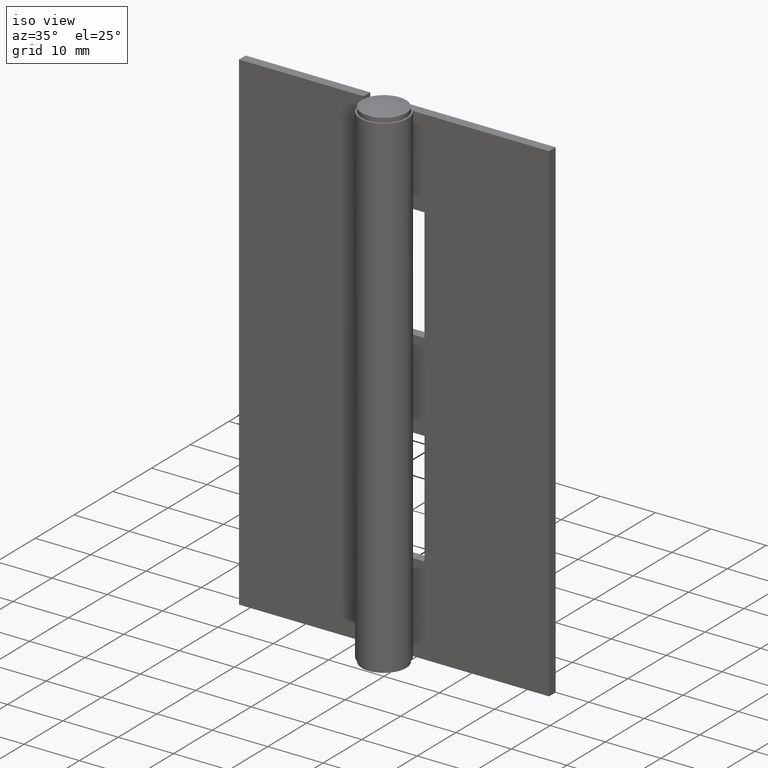
[diagram: clean part render]
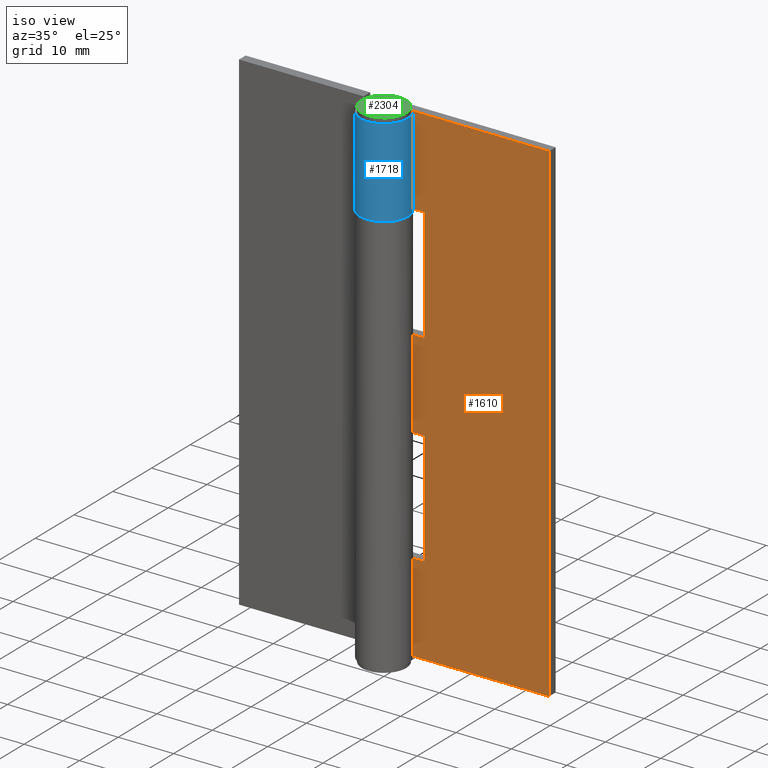
[diagram: same view with three faces highlighted in distinct colors, each labeled with its STEP entity id]
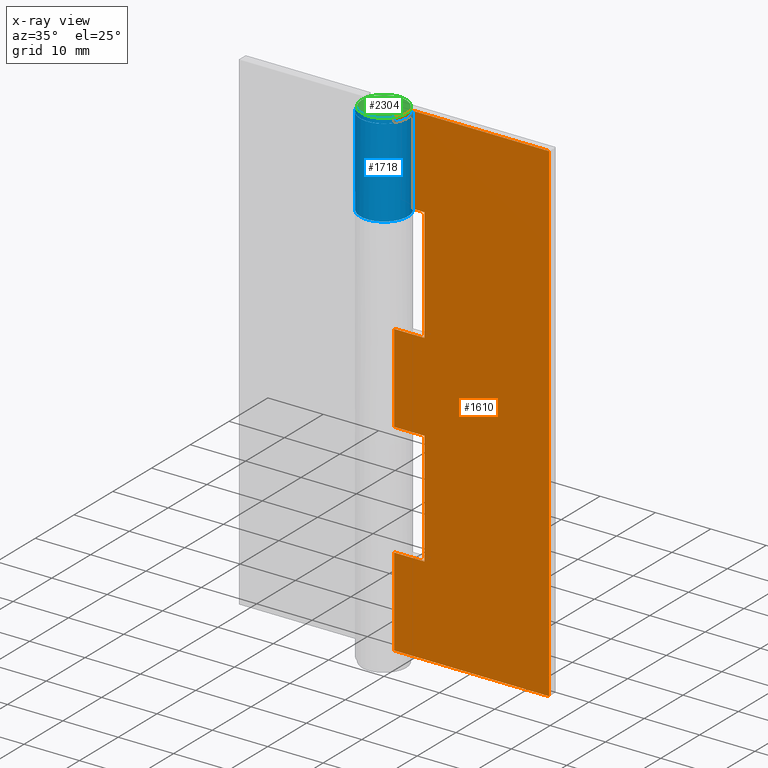
[diagram: x-ray of the same camera — body ghosted, the three highlighted faces saturated]
A machine part, iso view with three faces highlighted in distinct colors.
The next image is the same camera in x-ray (body ghosted, the three faces saturated) — at least one of them is partly hidden behind the body in this view.
Their STEP definitions:

[orange] entity #1610 — the highlighted face is a freeform B-spline surface patch.
#1232=CARTESIAN_POINT('',(0.002280350645432,2.599999000000000,16.0));
#1233=VERTEX_POINT('',#1232);
#1271=CARTESIAN_POINT('',(0.002280350645432,2.599999000000000,0.0));
#1272=VERTEX_POINT('',#1271);
#1304=CARTESIAN_POINT('',(0.002280350645432,2.599999000000000,16.0));
#1305=CARTESIAN_POINT('',(0.002280350645432,2.599999000000000,0.0));
#1306=QUASI_UNIFORM_CURVE('',1,(#1304,#1305),.UNSPECIFIED.,.F.,.U.);
#1307=EDGE_CURVE('',#1233,#1272,#1306,.T.);
#1370=CARTESIAN_POINT('',(0.002280350645432,2.599999000000000,73.0));
#1371=VERTEX_POINT('',#1370);
#1401=CARTESIAN_POINT('',(0.002280350645432,2.599999000000000,89.0));
#1402=VERTEX_POINT('',#1401);
#1403=CARTESIAN_POINT('',(0.002280350645432,2.599999000000000,89.0));
#1404=CARTESIAN_POINT('',(0.002280350645432,2.599999000000000,73.0));
#1405=QUASI_UNIFORM_CURVE('',1,(#1403,#1404),.UNSPECIFIED.,.F.,.U.);
#1406=EDGE_CURVE('',#1402,#1371,#1405,.T.);
#1464=CARTESIAN_POINT('',(0.002280350645432,2.599999000000000,52.500000000000000));
#1465=VERTEX_POINT('',#1464);
#1504=CARTESIAN_POINT('',(0.002280350645432,2.599999000000000,36.500000000000000));
#1505=VERTEX_POINT('',#1504);
#1535=CARTESIAN_POINT('',(0.002280350645432,2.599999000000000,52.500000000000000));
#1536=CARTESIAN_POINT('',(0.002280350645432,2.599999000000000,36.500000000000000));
#1537=QUASI_UNIFORM_CURVE('',1,(#1535,#1536),.UNSPECIFIED.,.F.,.U.);
#1538=EDGE_CURVE('',#1465,#1505,#1537,.T.);
#1543=CARTESIAN_POINT('',(-1.396205691574818,2.599999000000000,93.445549827500741));
#1544=CARTESIAN_POINT('',(-1.396205691574818,2.599999000000000,-4.445552214666744));
#1545=CARTESIAN_POINT('',(29.398486793177611,2.599999000000000,93.445549827500741));
#1546=CARTESIAN_POINT('',(29.398486793177611,2.599999000000000,-4.445552214666744));
#1547=B_SPLINE_SURFACE_WITH_KNOTS('',1,1,((#1543,#1545),(#1544,#1546)),.UNSPECIFIED.,.F.,.F.,.U.,(2,2),(2,2),(0.0,97.891102042167489),(0.0,30.794692484752431),.UNSPECIFIED.);
#1548=CARTESIAN_POINT('',(5.499999999999890,2.599998999999965,73.0));
#1549=VERTEX_POINT('',#1548);
#1550=CARTESIAN_POINT('',(5.499999999999890,2.599998999999965,52.500000000000000));
#1551=VERTEX_POINT('',#1550);
#1552=CARTESIAN_POINT('',(5.499999999999890,2.599998999999965,73.0));
#1553=CARTESIAN_POINT('',(5.499999999999890,2.599998999999965,52.500000000000000));
#1554=QUASI_UNIFORM_CURVE('',1,(#1552,#1553),.UNSPECIFIED.,.F.,.U.);
#1555=EDGE_CURVE('',#1549,#1551,#1554,.T.);
#1556=ORIENTED_EDGE('',*,*,#1555,.T.);
#1557=CARTESIAN_POINT('',(5.499999999999890,2.599998999999965,52.500000000000000));
#1558=CARTESIAN_POINT('',(0.002280350645432,2.599999000000000,52.500000000000000));
#1559=QUASI_UNIFORM_CURVE('',1,(#1557,#1558),.UNSPECIFIED.,.F.,.U.);
#1560=EDGE_CURVE('',#1551,#1465,#1559,.T.);
#1561=ORIENTED_EDGE('',*,*,#1560,.T.);
#1562=ORIENTED_EDGE('',*,*,#1538,.T.);
#1563=CARTESIAN_POINT('',(5.499999999999890,2.599998999999965,36.500000000000000));
#1564=VERTEX_POINT('',#1563);
#1565=CARTESIAN_POINT('',(0.002280350645432,2.599999000000000,36.500000000000000));
#1566=CARTESIAN_POINT('',(5.499999999999890,2.599998999999965,36.500000000000000));
#1567=QUASI_UNIFORM_CURVE('',1,(#1565,#1566),.UNSPECIFIED.,.F.,.U.);
#1568=EDGE_CURVE('',#1505,#1564,#1567,.T.);
#1569=ORIENTED_EDGE('',*,*,#1568,.T.);
#1570=CARTESIAN_POINT('',(5.499999999999890,2.599998999999965,16.0));
#1571=VERTEX_POINT('',#1570);
#1572=CARTESIAN_POINT('',(5.499999999999890,2.599998999999965,36.500000000000000));
#1573=CARTESIAN_POINT('',(5.499999999999890,2.599998999999965,16.0));
#1574=QUASI_UNIFORM_CURVE('',1,(#1572,#1573),.UNSPECIFIED.,.F.,.U.);
#1575=EDGE_CURVE('',#1564,#1571,#1574,.T.);
#1576=ORIENTED_EDGE('',*,*,#1575,.T.);
#1577=CARTESIAN_POINT('',(5.499999999999890,2.599998999999965,16.0));
#1578=CARTESIAN_POINT('',(0.002280350645432,2.599999000000000,16.0));
#1579=QUASI_UNIFORM_CURVE('',1,(#1577,#1578),.UNSPECIFIED.,.F.,.U.);
#1580=EDGE_CURVE('',#1571,#1233,#1579,.T.);
#1581=ORIENTED_EDGE('',*,*,#1580,.T.);
#1582=ORIENTED_EDGE('',*,*,#1307,.T.);
#1583=CARTESIAN_POINT('',(28.0,2.599998000000000,0.0));
#1584=VERTEX_POINT('',#1583);
#1585=CARTESIAN_POINT('',(28.0,2.599998000000000,0.0));
#1586=CARTESIAN_POINT('',(0.002280350645432,2.599999000000000,0.0));
#1587=QUASI_UNIFORM_CURVE('',1,(#1585,#1586),.UNSPECIFIED.,.F.,.U.);
#1588=EDGE_CURVE('',#1584,#1272,#1587,.T.);
#1589=ORIENTED_EDGE('',*,*,#1588,.F.);
#1590=CARTESIAN_POINT('',(28.0,2.599998000000000,89.0));
#1591=VERTEX_POINT('',#1590);
#1592=CARTESIAN_POINT('',(28.0,2.599998000000000,89.0));
#1593=CARTESIAN_POINT('',(28.0,2.599998000000000,0.0));
#1594=QUASI_UNIFORM_CURVE('',1,(#1592,#1593),.UNSPECIFIED.,.F.,.U.);
#1595=EDGE_CURVE('',#1591,#1584,#1594,.T.);
#1596=ORIENTED_EDGE('',*,*,#1595,.F.);
#1597=CARTESIAN_POINT('',(28.0,2.599998000000000,89.0));
#1598=CARTESIAN_POINT('',(0.002280350645432,2.599999000000000,89.0));
#1599=QUASI_UNIFORM_CURVE('',1,(#1597,#1598),.UNSPECIFIED.,.F.,.U.);
#1600=EDGE_CURVE('',#1591,#1402,#1599,.T.);
#1601=ORIENTED_EDGE('',*,*,#1600,.T.);
#1602=ORIENTED_EDGE('',*,*,#1406,.T.);
#1603=CARTESIAN_POINT('',(0.002280350645432,2.599999000000000,73.0));
#1604=CARTESIAN_POINT('',(5.499999999999890,2.599998999999965,73.0));
#1605=QUASI_UNIFORM_CURVE('',1,(#1603,#1604),.UNSPECIFIED.,.F.,.U.);
#1606=EDGE_CURVE('',#1371,#1549,#1605,.T.);
#1607=ORIENTED_EDGE('',*,*,#1606,.T.);
#1608=EDGE_LOOP('',(#1556,#1561,#1562,#1569,#1576,#1581,#1582,#1589,#1596,#1601,#1602,#1607));
#1609=FACE_OUTER_BOUND('',#1608,.T.);
#1610=ADVANCED_FACE('',(#1609),#1547,.T.);

[blue] entity #1718 — the highlighted face is a freeform B-spline surface patch.
#1317=CARTESIAN_POINT('',(3.462297661957915,2.549999000000000,89.0));
#1318=VERTEX_POINT('',#1317);
#1319=CARTESIAN_POINT('',(3.462297661957915,2.549999000000000,73.0));
#1320=VERTEX_POINT('',#1319);
#1321=CARTESIAN_POINT('',(3.462297661957915,2.549999000000000,89.0));
#1322=CARTESIAN_POINT('',(3.462297661957915,2.549999000000000,73.0));
#1323=QUASI_UNIFORM_CURVE('',1,(#1321,#1322),.UNSPECIFIED.,.F.,.U.);
#1324=EDGE_CURVE('',#1318,#1320,#1323,.T.);
#1611=CARTESIAN_POINT('',(0.115492422134413,4.298448731860080,89.400000000000020));
#1612=CARTESIAN_POINT('',(0.115492422134413,4.298448731860080,72.589999999999989));
#1613=CARTESIAN_POINT('',(-5.353405493591656,4.445389246006813,89.400000000000020));
#1614=CARTESIAN_POINT('',(-5.353405493591656,4.445389246006813,72.589999999999989));
#1615=CARTESIAN_POINT('',(-4.204033373110759,-0.903384413066069,89.400000000000020));
#1616=CARTESIAN_POINT('',(-4.204033373110759,-0.903384413066069,72.589999999999989));
#1617=CARTESIAN_POINT('',(-3.054661252629862,-6.252158072138948,89.400000000000020));
#1618=CARTESIAN_POINT('',(-3.054661252629862,-6.252158072138948,72.589999999999989));
#1619=CARTESIAN_POINT('',(1.871105737106346,-3.871558254833293,89.400000000000020));
#1620=CARTESIAN_POINT('',(1.871105737106346,-3.871558254833293,72.589999999999989));
#1621=CARTESIAN_POINT('',(6.796872726842556,-1.490958437527638,89.400000000000020));
#1622=CARTESIAN_POINT('',(6.796872726842556,-1.490958437527638,72.589999999999989));
#1623=CARTESIAN_POINT('',(3.319850284352503,2.732872863761648,89.400000000000020));
#1624=CARTESIAN_POINT('',(3.319850284352503,2.732872863761648,72.589999999999989));
#1632=(BOUNDED_SURFACE()B_SPLINE_SURFACE(1,2,((#1611,#1613,#1615,#1617,#1619,#1621,#1623),(#1612,#1614,#1616,#1618,#1620,#1622,#1624)),.UNSPECIFIED.,.F.,.F.,.U.)B_SPLINE_SURFACE_WITH_KNOTS((2,2),(3,2,2,3),(0.0,16.810000000000031),(0.0,8.358055092695921,16.716110185391841,25.074165278087762),.UNSPECIFIED.)GEOMETRIC_REPRESENTATION_ITEM()RATIONAL_B_SPLINE_SURFACE(((1.0,0.617951097721073,1.0,0.617951097721073,1.0,0.617951097721073,1.0),(1.0,0.617951097721073,1.0,0.617951097721073,1.0,0.617951097721073,1.0)))REPRESENTATION_ITEM('')SURFACE());
#1633=CARTESIAN_POINT('',(0.002932575507884,4.299999000000000,73.0));
#1634=VERTEX_POINT('',#1633);
#1635=CARTESIAN_POINT('',(2.862294E-014,4.299999000000000,73.0));
#1636=VERTEX_POINT('',#1635);
#1637=CARTESIAN_POINT('',(0.002932575507884,4.299999000000000,73.0));
#1638=CARTESIAN_POINT('',(2.862294E-014,4.299999000000000,73.0));
#1639=QUASI_UNIFORM_CURVE('',1,(#1637,#1638),.UNSPECIFIED.,.F.,.U.);
#1640=EDGE_CURVE('',#1634,#1636,#1639,.T.);
#1641=ORIENTED_EDGE('',*,*,#1640,.T.);
#1642=CARTESIAN_POINT('',(2.862294E-014,4.299999000000000,73.0));
#1643=CARTESIAN_POINT('',(-0.494055494314655,4.300382825508994,72.999999999999957));
#1644=CARTESIAN_POINT('',(-1.182380924320854,4.179991941072868,73.000000000000227));
#1645=CARTESIAN_POINT('',(-2.048322781174422,3.800930899276221,72.999999999999787));
#1646=CARTESIAN_POINT('',(-2.580003899130841,3.460760695902349,72.999999999999545));
#1647=CARTESIAN_POINT('',(-3.109712432020819,2.995597857258904,73.000000000001023));
#1648=CARTESIAN_POINT('',(-3.522998718300950,2.498416629966440,72.999999999998536));
#1649=CARTESIAN_POINT('',(-3.910939602681088,1.838824514260812,73.000000000001094));
#1650=CARTESIAN_POINT('',(-4.170256042787879,1.148442294733451,72.999999999999503));
#1651=CARTESIAN_POINT('',(-4.326553028698839,0.245531037348289,72.999999999999474));
#1652=CARTESIAN_POINT('',(-4.286577365798608,-0.689626725175963,73.000000000002004));
#1653=CARTESIAN_POINT('',(-4.042596791696633,-1.528338263282167,72.999999999996646));
#1654=CARTESIAN_POINT('',(-3.712809750728050,-2.201883807321218,73.000000000001819));
#1655=CARTESIAN_POINT('',(-3.310093655080955,-2.782180337294268,72.999999999998977));
#1656=CARTESIAN_POINT('',(-2.808327778981988,-3.279808885092356,73.000000000000355));
#1657=CARTESIAN_POINT('',(-2.224345610541182,-3.700832643167203,72.999999999999957));
#1658=CARTESIAN_POINT('',(-1.540014076837522,-4.046781512287809,73.000000000000043));
#1659=CARTESIAN_POINT('',(-0.725988076783660,-4.267100844285360,73.0));
#1660=CARTESIAN_POINT('',(0.158794710972098,-4.325511452895795,72.999999999999844));
#1661=CARTESIAN_POINT('',(0.920097729398436,-4.224023221500392,73.000000000000568));
#1662=CARTESIAN_POINT('',(1.648820719761132,-3.990509843246948,72.999999999998295));
#1663=CARTESIAN_POINT('',(2.239357540570367,-3.692969417076600,73.000000000003382));
#1664=CARTESIAN_POINT('',(2.822061268235458,-3.269331271238420,73.000000000005357));
#1665=CARTESIAN_POINT('',(3.424803376712116,-2.660635189801156,72.999999999996248));
#1666=CARTESIAN_POINT('',(3.926940508110337,-1.852129048812417,73.000000000001322));
#1667=CARTESIAN_POINT('',(4.239878364319859,-0.893439730155782,72.999999999999645));
#1668=CARTESIAN_POINT('',(4.342147404502382,0.110396444120135,73.000000000000853));
#1669=CARTESIAN_POINT('',(4.166692976693245,1.321483180365099,72.999999999997215));
#1670=CARTESIAN_POINT('',(3.764454718326253,2.140398384456114,73.000000000003013));
#1671=CARTESIAN_POINT('',(3.462297661957915,2.549999000000000,73.0));
#1672=B_SPLINE_CURVE_WITH_KNOTS('',3,(#1642,#1643,#1644,#1645,#1646,#1647,#1648,#1649,#1650,#1651,#1652,#1653,#1654,#1655,#1656,#1657,#1658,#1659,#1660,#1661,#1662,#1663,#1664,#1665,#1666,#1667,#1668,#1669,#1670,#1671),.UNSPECIFIED.,.F.,.U.,(4,1,1,1,1,1,1,1,1,1,1,1,1,1,1,1,1,1,1,1,1,1,1,1,1,1,1,4),(0.000000511356834,1.481971641244954,2.065779493516391,2.829224471859941,3.368131811876921,4.176497759808093,4.760288777252967,5.658482777909249,6.376949996625477,7.499678538293743,8.442757153928712,8.981666925409972,9.745110199570856,10.553473852205739,11.092394777585559,11.900656560465761,12.843755591070311,13.607197874485410,14.550294184331911,15.134116064644440,15.897558348108600,16.526296879997751,17.289642193816981,18.457273870665230,19.355460475568592,20.298556785336508,21.466197801413561,22.993050870991372),.UNSPECIFIED.);
#1673=EDGE_CURVE('',#1636,#1320,#1672,.T.);
#1674=ORIENTED_EDGE('',*,*,#1673,.T.);
#1675=ORIENTED_EDGE('',*,*,#1324,.F.);
#1676=CARTESIAN_POINT('',(0.002932575507884,4.299999000000000,89.0));
#1677=VERTEX_POINT('',#1676);
#1678=CARTESIAN_POINT('',(3.462297661957915,2.549999000000000,89.0));
#1679=CARTESIAN_POINT('',(3.693263669239280,2.236658231365996,89.000000000000014));
#1680=CARTESIAN_POINT('',(3.946133952670946,1.772231487493886,89.0));
#1681=CARTESIAN_POINT('',(4.197827390908508,1.003015094189423,89.000000000000028));
#1682=CARTESIAN_POINT('',(4.332828632122659,0.217112140535552,88.999999999999957));
#1683=CARTESIAN_POINT('',(4.278715651017490,-0.687222616447678,88.999999999999716));
#1684=CARTESIAN_POINT('',(4.055066249400487,-1.482717279035993,89.000000000000981));
#1685=CARTESIAN_POINT('',(3.779375561518442,-2.082922593990602,88.999999999998749));
#1686=CARTESIAN_POINT('',(3.394625722763115,-2.674295812341101,89.000000000000639));
#1687=CARTESIAN_POINT('',(2.800411311793593,-3.313333445754669,88.999999999999176));
#1688=CARTESIAN_POINT('',(2.036049013519897,-3.827205410719533,89.000000000003126));
#1689=CARTESIAN_POINT('',(1.279985526567680,-4.122473108319755,88.999999999994444));
#1690=CARTESIAN_POINT('',(0.636014088338214,-4.267173246289634,89.000000000003197));
#1691=CARTESIAN_POINT('',(-0.172356150349485,-4.332167984682181,88.999999999994230));
#1692=CARTESIAN_POINT('',(-1.100712312132172,-4.201981989637252,89.000000000012321));
#1693=CARTESIAN_POINT('',(-1.979669062222712,-3.845880705479273,88.999999999984254));
#1694=CARTESIAN_POINT('',(-2.724603803468440,-3.365522606064431,89.000000000005713));
#1695=CARTESIAN_POINT('',(-3.402397615897030,-2.699844532397902,88.999999999998778));
#1696=CARTESIAN_POINT('',(-3.898355054337658,-1.888809939897769,88.999999999995467));
#1697=CARTESIAN_POINT('',(-4.163777772517974,-1.138078984033889,89.000000000006793));
#1698=CARTESIAN_POINT('',(-4.301617640354615,-0.415813831423866,89.000000000003496));
#1699=CARTESIAN_POINT('',(-4.313540784881977,0.321665909812638,88.999999999997954));
#1700=CARTESIAN_POINT('',(-4.179933977153399,1.091367480470166,89.000000000003865));
#1701=CARTESIAN_POINT('',(-3.940171528727542,1.771453013278348,88.999999999998820));
#1702=CARTESIAN_POINT('',(-3.597872071437936,2.389054569539963,89.000000000000142));
#1703=CARTESIAN_POINT('',(-3.095610132739854,3.025754790281642,89.000000000000128));
#1704=CARTESIAN_POINT('',(-2.360235610975859,3.650789249721136,88.999999999998451));
#1705=CARTESIAN_POINT('',(-1.284551692253144,4.168303275170220,89.000000000004079));
#1706=CARTESIAN_POINT('',(-0.446231435310530,4.300548774201821,88.999999999995950));
#1707=CARTESIAN_POINT('',(0.002932575507884,4.299999000000000,89.0));
#1708=B_SPLINE_CURVE_WITH_KNOTS('',3,(#1678,#1679,#1680,#1681,#1682,#1683,#1684,#1685,#1686,#1687,#1688,#1689,#1690,#1691,#1692,#1693,#1694,#1695,#1696,#1697,#1698,#1699,#1700,#1701,#1702,#1703,#1704,#1705,#1706,#1707),.UNSPECIFIED.,.F.,.U.,(4,1,1,1,1,1,1,1,1,1,1,1,1,1,1,1,1,1,1,1,1,1,1,1,1,1,1,4),(0.000000511837396,1.167737070291203,1.571979896702981,2.425350188143696,3.548211384962791,4.266852417754983,4.895661944175718,5.524431440020628,6.377763629213288,7.500635431791430,8.264176125721317,8.803154662105079,9.476879356421694,10.689585557754899,11.587785969191650,12.306399532152740,13.339454007077251,14.417404868831060,15.136047077714190,15.719940711070210,16.618221460754562,17.336782007808509,18.055395570787631,18.774036456112491,19.447759534680621,20.480805002821938,21.648582821149041,22.995984622223240),.UNSPECIFIED.);
#1709=EDGE_CURVE('',#1318,#1677,#1708,.T.);
#1710=ORIENTED_EDGE('',*,*,#1709,.T.);
#1711=CARTESIAN_POINT('',(0.002932575507884,4.299999000000000,89.0));
#1712=CARTESIAN_POINT('',(0.002932575507884,4.299999000000000,73.0));
#1713=QUASI_UNIFORM_CURVE('',1,(#1711,#1712),.UNSPECIFIED.,.F.,.U.);
#1714=EDGE_CURVE('',#1677,#1634,#1713,.T.);
#1715=ORIENTED_EDGE('',*,*,#1714,.T.);
#1716=EDGE_LOOP('',(#1641,#1674,#1675,#1710,#1715));
#1717=FACE_OUTER_BOUND('',#1716,.T.);
#1718=ADVANCED_FACE('',(#1717),#1632,.T.);

[green] entity #2304 — the highlighted face is a freeform B-spline surface patch.
#2214=CARTESIAN_POINT('',(-4.171832971385769,-4.171739627476478,88.764601458090667));
#2215=CARTESIAN_POINT('',(-2.182197538525249,-4.364297424603493,89.639963346807093));
#2216=CARTESIAN_POINT('',(2.182197448853676,-4.364297424603493,89.639963346807107));
#2217=CARTESIAN_POINT('',(4.171832815082841,-4.171739642603548,88.764601526857902));
#2218=CARTESIAN_POINT('',(-4.364386062350381,-2.182144205052534,89.639922367171479));
#2219=CARTESIAN_POINT('',(-2.287791968590079,-2.287740779712804,90.600000000128901));
#2220=CARTESIAN_POINT('',(2.287791874579383,-2.287740779712804,90.600000000128915));
#2221=CARTESIAN_POINT('',(4.364385899563645,-2.182144213330379,89.639922442433189));
#2222=CARTESIAN_POINT('',(-4.364386062350381,2.182144025709717,89.639922367171479));
#2223=CARTESIAN_POINT('',(-2.287791968590079,2.287740591691374,90.600000000128901));
#2224=CARTESIAN_POINT('',(2.287791874579383,2.287740591691374,90.600000000128915));
#2225=CARTESIAN_POINT('',(4.364385899563645,2.182144033987562,89.639922442433189));
#2226=CARTESIAN_POINT('',(-4.171833001639905,4.171739314869211,88.764601595621968));
#2227=CARTESIAN_POINT('',(-2.182197555081006,4.364297099027890,89.639963497327656));
#2228=CARTESIAN_POINT('',(2.182197465409434,4.364297099027890,89.639963497327685));
#2229=CARTESIAN_POINT('',(4.171832845336979,4.171739329996283,88.764601664389275));
#2237=(BOUNDED_SURFACE()B_SPLINE_SURFACE(2,2,((#2214,#2218,#2222,#2226),(#2215,#2219,#2223,#2227),(#2216,#2220,#2224,#2228),(#2217,#2221,#2225,#2229)),.UNSPECIFIED.,.F.,.F.,.U.)B_SPLINE_SURFACE_WITH_KNOTS((3,1,3),(3,1,3),(0.0,4.467492704610779,8.934985225641846),(0.0,4.467392745375430,8.934785123591437),.UNSPECIFIED.)GEOMETRIC_REPRESENTATION_ITEM()RATIONAL_B_SPLINE_SURFACE(((1.096780232709144,1.048391199085639,1.048391199085639,1.096780224755293),(1.048389033623505,1.0,1.0,1.048389025669654),(1.048389033623505,1.0,1.0,1.048389025669654),(1.096780228732129,1.048391195108624,1.048391195108624,1.096780220778277)))REPRESENTATION_ITEM('')SURFACE());
#2238=CARTESIAN_POINT('',(0.244194158381799,-3.992539193672643,89.800000000000011));
#2239=VERTEX_POINT('',#2238);
#2240=CARTESIAN_POINT('',(-4.0,0.0,89.800000000000011));
#2241=VERTEX_POINT('',#2240);
#2242=CARTESIAN_POINT('',(0.244194158381798,-3.992539193672644,89.800000000000011));
#2243=CARTESIAN_POINT('',(0.122211053315881,-4.000000000000001,89.799999999999997));
#2244=CARTESIAN_POINT('',(0.0,-4.0,89.800000000000011));
#2245=CARTESIAN_POINT('',(-4.000000000000000,-4.000000000000000,89.800000000000026));
#2246=CARTESIAN_POINT('',(-4.0,0.0,89.800000000000011));
#2254=(BOUNDED_CURVE()B_SPLINE_CURVE(2,(#2242,#2243,#2244,#2245,#2246),.UNSPECIFIED.,.F.,.U.)B_SPLINE_CURVE_WITH_KNOTS((3,2,3),(0.739332962231494,0.750000000000000,1.0),.UNSPECIFIED.)CURVE()GEOMETRIC_REPRESENTATION_ITEM()RATIONAL_B_SPLINE_CURVE((0.976072041650753,0.987502787891110,1.0,0.707106781186548,1.0))REPRESENTATION_ITEM(''));
#2255=EDGE_CURVE('',#2239,#2241,#2254,.T.);
#2256=ORIENTED_EDGE('',*,*,#2255,.F.);
#2257=CARTESIAN_POINT('',(4.0,0.0,89.800000000000011));
#2258=VERTEX_POINT('',#2257);
#2259=CARTESIAN_POINT('',(4.0,0.0,89.800000000000011));
#2260=CARTESIAN_POINT('',(4.0,-3.762824267393927,89.800000000000026));
#2261=CARTESIAN_POINT('',(0.244194158381798,-3.992539193672644,89.800000000000011));
#2269=(BOUNDED_CURVE()B_SPLINE_CURVE(2,(#2259,#2260,#2261),.UNSPECIFIED.,.F.,.U.)B_SPLINE_CURVE_WITH_KNOTS((3,3),(0.500000000000000,0.739332962231494),.UNSPECIFIED.)CURVE()GEOMETRIC_REPRESENTATION_ITEM()RATIONAL_B_SPLINE_CURVE((1.0,0.719603993295437,0.976072041650753))REPRESENTATION_ITEM(''));
#2270=EDGE_CURVE('',#2258,#2239,#2269,.T.);
#2271=ORIENTED_EDGE('',*,*,#2270,.F.);
#2272=CARTESIAN_POINT('',(-0.244194158381799,3.992539193672643,89.800000000000011));
#2273=VERTEX_POINT('',#2272);
#2274=CARTESIAN_POINT('',(-0.244194158381800,3.992539193672644,89.800000000000026));
#2275=CARTESIAN_POINT('',(-0.122211053315881,4.0,89.800000000000011));
#2276=CARTESIAN_POINT('',(0.0,4.0,89.800000000000011));
#2277=CARTESIAN_POINT('',(4.000000000000000,4.000000000000000,89.800000000000026));
#2278=CARTESIAN_POINT('',(4.0,0.0,89.800000000000011));
#2286=(BOUNDED_CURVE()B_SPLINE_CURVE(2,(#2274,#2275,#2276,#2277,#2278),.UNSPECIFIED.,.F.,.U.)B_SPLINE_CURVE_WITH_KNOTS((3,2,3),(0.239332962231494,0.250000000000000,0.500000000000000),.UNSPECIFIED.)CURVE()GEOMETRIC_REPRESENTATION_ITEM()RATIONAL_B_SPLINE_CURVE((0.976072041650752,0.987502787891110,1.0,0.707106781186548,1.0))REPRESENTATION_ITEM(''));
#2287=EDGE_CURVE('',#2273,#2258,#2286,.T.);
#2288=ORIENTED_EDGE('',*,*,#2287,.F.);
#2289=CARTESIAN_POINT('',(-4.0,0.0,89.800000000000011));
#2290=CARTESIAN_POINT('',(-4.000000000000000,3.762824267393927,89.800000000000040));
#2291=CARTESIAN_POINT('',(-0.244194158381800,3.992539193672644,89.800000000000026));
#2299=(BOUNDED_CURVE()B_SPLINE_CURVE(2,(#2289,#2290,#2291),.UNSPECIFIED.,.F.,.U.)B_SPLINE_CURVE_WITH_KNOTS((3,3),(0.0,0.239332962231494),.UNSPECIFIED.)CURVE()GEOMETRIC_REPRESENTATION_ITEM()RATIONAL_B_SPLINE_CURVE((1.0,0.719603993295438,0.976072041650752))REPRESENTATION_ITEM(''));
#2300=EDGE_CURVE('',#2241,#2273,#2299,.T.);
#2301=ORIENTED_EDGE('',*,*,#2300,.F.);
#2302=EDGE_LOOP('',(#2256,#2271,#2288,#2301));
#2303=FACE_OUTER_BOUND('',#2302,.T.);
#2304=ADVANCED_FACE('',(#2303),#2237,.T.);